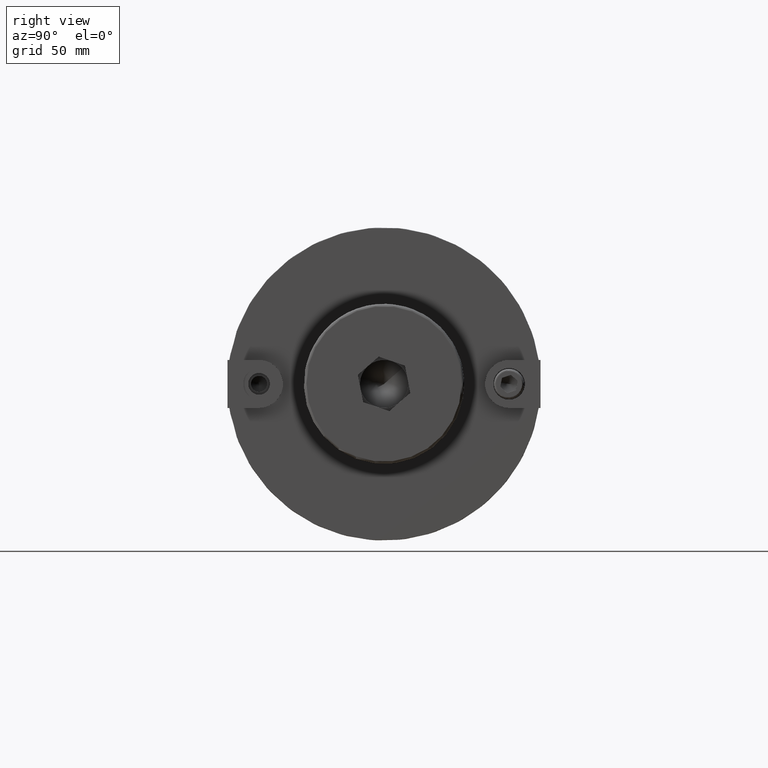
[diagram: clean part render]
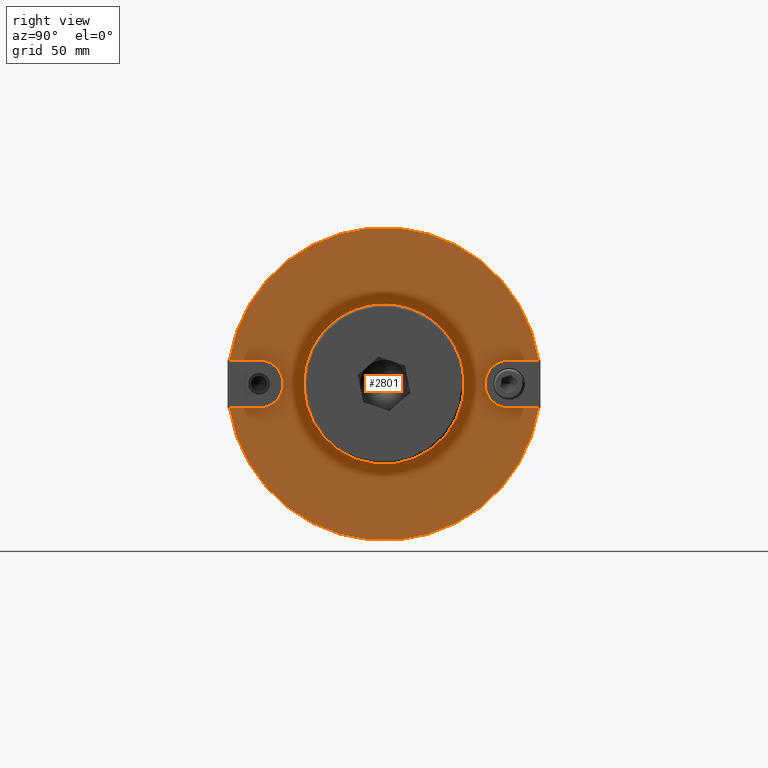
[diagram: same view with one face highlighted and labeled with its STEP entity id]
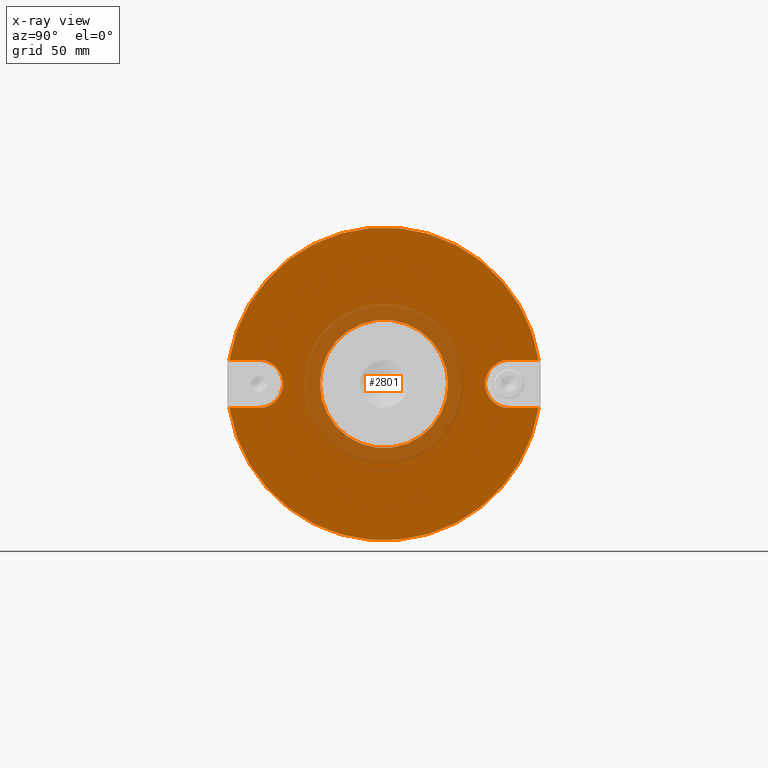
[diagram: x-ray of the same camera — body ghosted, the highlighted face saturated]
A machine part, right view. The second image highlights one B-rep face of the part: STEP entity #2801.
The next image is the same camera in x-ray: the body ghosted, the highlighted face saturated — about 12% of this face is hidden behind the body in this view.
In plain terms, the highlighted planar face has unit normal (1, 0, 0).
Its self-contained STEP definition (entity closure, byte-faithful):
#617=FACE_BOUND('',#953,.T.);
#647=CIRCLE('',#3092,9.52500000000001);
#649=CIRCLE('',#3096,61.975);
#651=CIRCLE('',#3098,61.975);
#655=CIRCLE('',#3107,9.52500000000001);
#667=CIRCLE('',#3128,25.4);
#806=FACE_OUTER_BOUND('',#952,.T.);
#952=EDGE_LOOP('',(#2109,#2110,#2111,#2112,#2113,#2114,#2115,#2116));
#953=EDGE_LOOP('',(#2117));
#1100=LINE('',#4269,#1259);
#1108=LINE('',#4297,#1267);
#1114=LINE('',#4322,#1273);
#1119=LINE('',#4335,#1278);
#1259=VECTOR('',#3428,10.);
#1267=VECTOR('',#3458,10.);
#1273=VECTOR('',#3484,10.);
#1278=VECTOR('',#3499,10.);
#1417=VERTEX_POINT('',#4265);
#1419=VERTEX_POINT('',#4268);
#1427=VERTEX_POINT('',#4291);
#1428=VERTEX_POINT('',#4295);
#1430=VERTEX_POINT('',#4302);
#1433=VERTEX_POINT('',#4308);
#1437=VERTEX_POINT('',#4321);
#1440=VERTEX_POINT('',#4331);
#1464=VERTEX_POINT('',#4499);
#1654=EDGE_CURVE('',#1419,#1417,#1100,.T.);
#1665=EDGE_CURVE('',#1427,#1419,#647,.T.);
#1668=EDGE_CURVE('',#1428,#1427,#1108,.T.);
#1671=EDGE_CURVE('',#1430,#1428,#649,.T.);
#1675=EDGE_CURVE('',#1417,#1433,#651,.T.);
#1680=EDGE_CURVE('',#1437,#1430,#1114,.T.);
#1685=EDGE_CURVE('',#1440,#1437,#655,.T.);
#1687=EDGE_CURVE('',#1433,#1440,#1119,.T.);
#1718=EDGE_CURVE('',#1464,#1464,#667,.T.);
#2109=ORIENTED_EDGE('',*,*,#1654,.T.);
#2110=ORIENTED_EDGE('',*,*,#1675,.T.);
#2111=ORIENTED_EDGE('',*,*,#1687,.T.);
#2112=ORIENTED_EDGE('',*,*,#1685,.T.);
#2113=ORIENTED_EDGE('',*,*,#1680,.T.);
#2114=ORIENTED_EDGE('',*,*,#1671,.T.);
#2115=ORIENTED_EDGE('',*,*,#1668,.T.);
#2116=ORIENTED_EDGE('',*,*,#1665,.T.);
#2117=ORIENTED_EDGE('',*,*,#1718,.F.);
#2718=PLANE('',#3127);
#2801=ADVANCED_FACE('',(#806,#617),#2718,.T.);
#3092=AXIS2_PLACEMENT_3D('',#4292,#3452,#3453);
#3096=AXIS2_PLACEMENT_3D('',#4303,#3464,#3465);
#3098=AXIS2_PLACEMENT_3D('',#4310,#3470,#3471);
#3107=AXIS2_PLACEMENT_3D('',#4332,#3494,#3495);
#3127=AXIS2_PLACEMENT_3D('',#4498,#3549,#3550);
#3128=AXIS2_PLACEMENT_3D('',#4500,#3551,#3552);
#3428=DIRECTION('',(0.,-1.,2.21260944619977E-16));
#3452=DIRECTION('center_axis',(-1.,0.,0.));
#3453=DIRECTION('ref_axis',(0.,-1.22464679914735E-16,-1.));
#3458=DIRECTION('',(0.,1.,-2.36684152094933E-17));
#3464=DIRECTION('center_axis',(1.,0.,0.));
#3465=DIRECTION('ref_axis',(0.,0.,-1.));
#3470=DIRECTION('center_axis',(1.,0.,0.));
#3471=DIRECTION('ref_axis',(0.,0.,-1.));
#3484=DIRECTION('',(0.,1.,-9.8796264705242E-17));
#3494=DIRECTION('center_axis',(-1.,0.,0.));
#3495=DIRECTION('ref_axis',(0.,0.,1.));
#3499=DIRECTION('',(0.,-1.,-9.8796264705242E-17));
#3549=DIRECTION('center_axis',(1.,0.,0.));
#3550=DIRECTION('ref_axis',(0.,0.,-1.));
#3551=DIRECTION('center_axis',(1.,0.,0.));
#3552=DIRECTION('ref_axis',(0.,0.,-1.));
#4265=CARTESIAN_POINT('',(76.2,-61.2386724219263,-9.52499999999999));
#4268=CARTESIAN_POINT('',(76.2,-49.5,-9.525));
#4269=CARTESIAN_POINT('',(76.2,-12.05,-9.525));
#4291=CARTESIAN_POINT('',(76.2,-49.5,9.52500000000001));
#4292=CARTESIAN_POINT('Origin',(76.2,-49.5,1.3234226336184E-14));
#4295=CARTESIAN_POINT('',(76.2,-61.2386724219263,9.52500000000001));
#4297=CARTESIAN_POINT('',(76.2,-23.2875,9.52500000000001));
#4302=CARTESIAN_POINT('',(76.2,61.2386724219263,9.525));
#4303=CARTESIAN_POINT('Origin',(76.2,0.,0.));
#4308=CARTESIAN_POINT('',(76.2,61.2386724219263,-9.525));
#4310=CARTESIAN_POINT('Origin',(76.2,0.,0.));
#4321=CARTESIAN_POINT('',(76.2,49.5,9.525));
#4322=CARTESIAN_POINT('',(76.2,37.45,9.525));
#4331=CARTESIAN_POINT('',(76.2,49.5,-9.525));
#4332=CARTESIAN_POINT('Origin',(76.2,49.5,-7.17222468040456E-15));
#4335=CARTESIAN_POINT('',(76.2,48.6875,-9.525));
#4498=CARTESIAN_POINT('Origin',(76.2,25.4,0.));
#4499=CARTESIAN_POINT('',(76.2,-25.4,-3.11060286983428E-15));
#4500=CARTESIAN_POINT('Origin',(76.2,0.,0.));